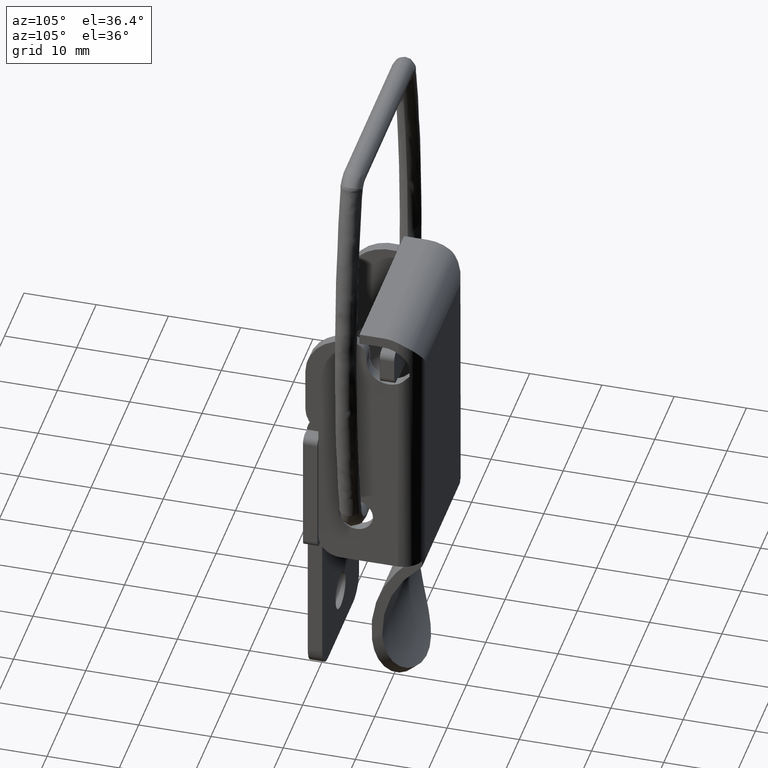
[diagram: clean part render]
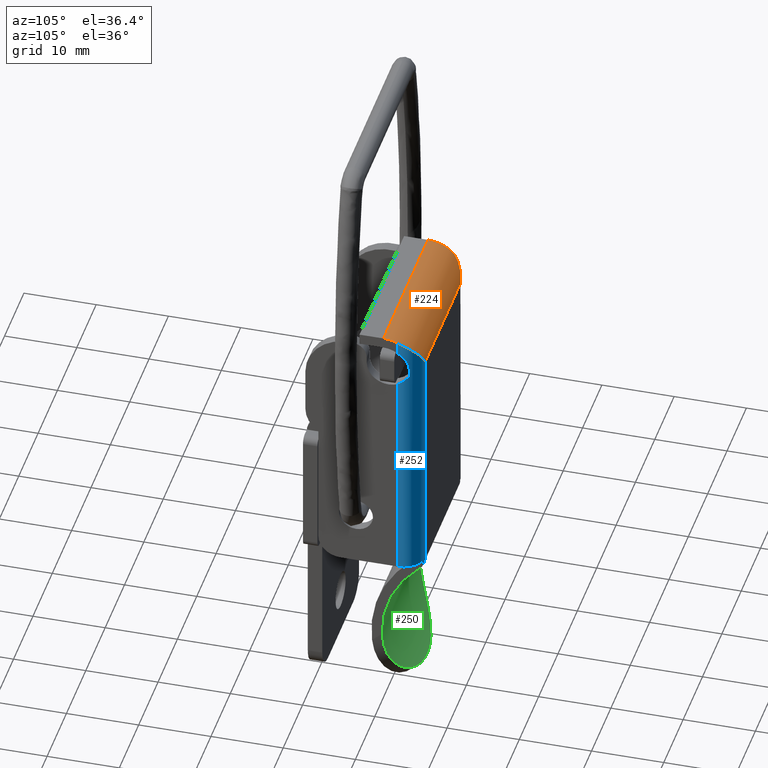
[diagram: same view with three faces highlighted in distinct colors, each labeled with its STEP entity id]
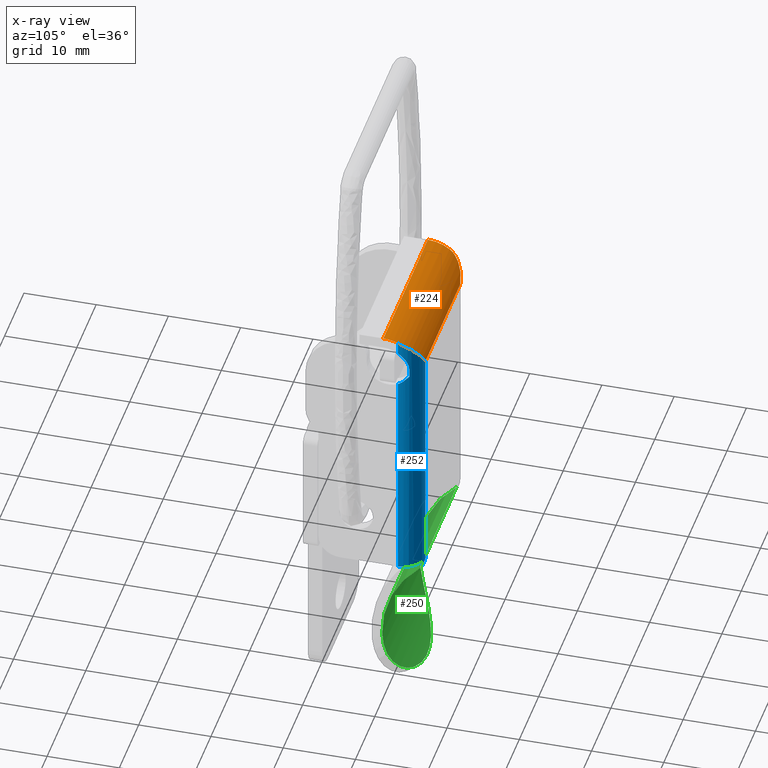
[diagram: x-ray of the same camera — body ghosted, the three highlighted faces saturated]
A machine part, auxiliary view with three faces highlighted in distinct colors.
The next image is the same camera in x-ray (body ghosted, the three faces saturated) — at least one of them is partly hidden behind the body in this view.
Their STEP definitions:

[orange] entity #224 — the highlighted cylindrical surface (partial cylindrical patch) has radius 5 mm, axis along (-1, 0, 0).
#224=ADVANCED_FACE('',(#1026),#1025,.T.);
#1025=CYLINDRICAL_SURFACE('',#2123,5.00000000000E+00);
#1026=FACE_OUTER_BOUND('',#2124,.T.);
#2120=CARTESIAN_POINT('',(3.79999999996E+00,1.00000000000E+03,2.50000000000E+01));
#2121=DIRECTION('',(-0.00000000000E+00,1.00000000000E+00,0.00000000000E+00));
#2122=DIRECTION('',(-0.00000000000E+00,-0.00000000000E+00,1.00000000000E+00));
#2123=AXIS2_PLACEMENT_3D('',#2120,#2121,#2122);
#2124=EDGE_LOOP('',(#2743,#2744,#2745,#2746,#2747,#2748));
#2743=ORIENTED_EDGE('',*,*,#3198,.F.);
#2744=ORIENTED_EDGE('',*,*,#3199,.T.);
#2745=ORIENTED_EDGE('',*,*,#3200,.F.);
#2746=ORIENTED_EDGE('',*,*,#3201,.T.);
#2747=ORIENTED_EDGE('',*,*,#3202,.F.);
#2748=ORIENTED_EDGE('',*,*,#3203,.T.);
#3198=EDGE_CURVE('',#4635,#4636,#4637,.T.);
#3199=EDGE_CURVE('',#4635,#4643,#4644,.T.);
#3200=EDGE_CURVE('',#4650,#4643,#4651,.T.);
#3201=EDGE_CURVE('',#4650,#4657,#4658,.T.);
#3202=EDGE_CURVE('',#4664,#4657,#4665,.T.);
#3203=EDGE_CURVE('',#4664,#4636,#4671,.T.);
#4635=VERTEX_POINT('',#6369);
#4636=VERTEX_POINT('',#6370);
#4637=LINE('',#6371,#6372);
#4643=VERTEX_POINT('',#6374);
#4644=(BOUNDED_CURVE() B_SPLINE_CURVE(3,(#6375,#6376,#6377,#6378,#6379,#6380,#6381,#6382,#6383,#6384,#6385,#6386,#6387,#6388),.UNSPECIFIED.,.F.,.F.) B_SPLINE_CURVE_WITH_KNOTS((4,2,2,2,2,2,4),(-5.10609110807E-03,-4.46782971956E-03,-3.82956833105E-03,-2.55304555403E-03,-1.27652277702E-03,-6.38261388509E-04,-3.87895961445E-18),.UNSPECIFIED.) CURVE() GEOMETRIC_REPRESENTATION_ITEM() RATIONAL_B_SPLINE_CURVE((1.00000000000E+00,1.00000000000E+00,1.00000000000E+00,1.00000000000E+00,1.00000000000E+00,1.00000000000E+00,1.00000000000E+00,1.00000000000E+00,1.00000000000E+00,1.00000000000E+00,1.00000000000E+00,1.00000000000E+00,1.00000000000E+00,1.00000000000E+00)) REPRESENTATION_ITEM('') );
#4650=VERTEX_POINT('',#6389);
#4651=CIRCLE('',#6393,5.00000000000E+00);
#4657=VERTEX_POINT('',#6394);
#4658=LINE('',#6395,#6396);
#4664=VERTEX_POINT('',#6398);
#4665=CIRCLE('',#6402,5.00000000000E+00);
#4671=(BOUNDED_CURVE() B_SPLINE_CURVE(3,(#6403,#6404,#6405,#6406,#6407,#6408,#6409,#6410,#6411,#6412,#6413,#6414,#6415,#6416,#6417,#6418,#6419,#6420),.UNSPECIFIED.,.F.,.F.) B_SPLINE_CURVE_WITH_KNOTS((4,2,2,2,2,2,2,2,4),(8.73965404867E-19,8.27608451889E-04,1.65521690378E-03,2.48282535567E-03,3.31043380756E-03,4.13804225944E-03,4.96565071133E-03,5.79325916322E-03,6.62086761511E-03),.UNSPECIFIED.) CURVE() GEOMETRIC_REPRESENTATION_ITEM() RATIONAL_B_SPLINE_CURVE((1.00000000000E+00,1.00000000000E+00,1.00000000000E+00,1.00000000000E+00,1.00000000000E+00,1.00000000000E+00,1.00000000000E+00,1.00000000000E+00,1.00000000000E+00,1.00000000000E+00,1.00000000000E+00,1.00000000000E+00,1.00000000000E+00,1.00000000000E+00,1.00000000000E+00,1.00000000000E+00,1.00000000000E+00,1.00000000000E+00)) REPRESENTATION_ITEM('') );
#6369=CARTESIAN_POINT('',(8.79999999996E+00,2.10000000000E+01,2.50000000000E+01));
#6370=CARTESIAN_POINT('',(8.79999999996E+00,3.00000000000E+00,2.50000000000E+01));
#6371=CARTESIAN_POINT('',(8.79999999996E+00,2.10000000000E+01,2.50000000000E+01));
#6372=VECTOR('',#6373,1.80000000000E+01);
#6373=DIRECTION('',(0.00000000000E+00,-1.00000000000E+00,0.00000000000E+00));
#6374=CARTESIAN_POINT('',(6.79999999996E+00,2.30000000000E+01,2.90000000000E+01));
#6375=CARTESIAN_POINT('',(8.79999999996E+00,2.10000000000E+01,2.50000000000E+01));
#6376=CARTESIAN_POINT('',(8.79999999996E+00,2.11137216587E+01,2.51798099228E+01));
#6377=CARTESIAN_POINT('',(8.79019437343E+00,2.12287932559E+01,2.53617507074E+01));
#6378=CARTESIAN_POINT('',(8.75086293260E+00,2.14553611931E+01,2.57223985614E+01));
#6379=CARTESIAN_POINT('',(8.72149250933E+00,2.15668273533E+01,2.59010431486E+01));
#6380=CARTESIAN_POINT('',(8.60401677715E+00,2.18939968208E+01,2.64329312285E+01));
#6381=CARTESIAN_POINT('',(8.48728109628E+00,2.21029011218E+01,2.67820808311E+01));
#6382=CARTESIAN_POINT('',(8.16152467226E+00,2.24864585259E+01,2.74745744477E+01));
#6383=CARTESIAN_POINT('',(7.95664909630E+00,2.26563089004E+01,2.78085078319E+01));
#6384=CARTESIAN_POINT('',(7.57520030550E+00,2.28491521199E+01,2.82846955173E+01));
#6385=CARTESIAN_POINT('',(7.43432565013E+00,2.29030631948E+01,2.84402948107E+01));
#6386=CARTESIAN_POINT('',(7.13357851545E+00,2.29780657036E+01,2.87324530267E+01));
#6387=CARTESIAN_POINT('',(6.97276085975E+00,2.30000000000E+01,2.88704293552E+01));
#6388=CARTESIAN_POINT('',(6.79999999996E+00,2.30000000000E+01,2.90000000000E+01));
#6389=CARTESIAN_POINT('',(3.79999999997E+00,2.30000000000E+01,3.00000000000E+01));
#6390=CARTESIAN_POINT('',(3.79999999997E+00,2.30000000000E+01,2.50000000000E+01));
#6391=DIRECTION('',(0.00000000000E+00,1.00000000000E+00,0.00000000000E+00));
#6392=DIRECTION('',(-0.00000000000E+00,0.00000000000E+00,-1.00000000000E+00));
#6393=AXIS2_PLACEMENT_3D('',#6390,#6391,#6392);
#6394=CARTESIAN_POINT('',(3.79999999996E+00,0.00000000000E+00,3.00000000000E+01));
#6395=CARTESIAN_POINT('',(3.79999999996E+00,2.30000000000E+01,3.00000000000E+01));
#6396=VECTOR('',#6397,2.30000000000E+01);
#6397=DIRECTION('',(0.00000000000E+00,-1.00000000000E+00,0.00000000000E+00));
#6398=CARTESIAN_POINT('',(5.79999999996E+00,0.00000000000E+00,2.95825756950E+01));
#6399=CARTESIAN_POINT('',(3.79999999996E+00,0.00000000000E+00,2.50000000000E+01));
#6400=DIRECTION('',(0.00000000000E+00,-1.00000000000E+00,0.00000000000E+00));
#6401=DIRECTION('',(-0.00000000000E+00,-0.00000000000E+00,-1.00000000000E+00));
#6402=AXIS2_PLACEMENT_3D('',#6399,#6400,#6401);
#6403=CARTESIAN_POINT('',(5.79999999996E+00,0.00000000000E+00,2.95825756950E+01));
#6404=CARTESIAN_POINT('',(6.05718857864E+00,7.62329652529E-18,2.94703293969E+01));
#6405=CARTESIAN_POINT('',(6.29820351339E+00,3.24128797601E-02,2.93396264037E+01));
#6406=CARTESIAN_POINT('',(6.75241932306E+00,1.45586314147E-01,2.90443291481E+01));
#6407=CARTESIAN_POINT('',(6.96570670742E+00,2.27417809673E-01,2.88787939058E+01));
#6408=CARTESIAN_POINT('',(7.34860562711E+00,4.21646893560E-01,2.85318747465E+01));
#6409=CARTESIAN_POINT('',(7.52132732589E+00,5.34771172345E-01,2.83486209243E+01));
#6410=CARTESIAN_POINT('',(7.83451394229E+00,7.86163069655E-01,2.79638212515E+01));
#6411=CARTESIAN_POINT('',(7.97271747779E+00,9.22920475005E-01,2.77647318871E+01));
#6412=CARTESIAN_POINT('',(8.21381250263E+00,1.20877980315E+00,2.73608415340E+01));
#6413=CARTESIAN_POINT('',(8.31754820946E+00,1.35866316537E+00,2.71549226472E+01));
#6414=CARTESIAN_POINT('',(8.49484431005E+00,1.66964300420E+00,2.67350418855E+01));
#6415=CARTESIAN_POINT('',(8.56860106504E+00,1.83163079409E+00,2.65199504032E+01));
#6416=CARTESIAN_POINT('',(8.68505253228E+00,2.15933934036E+00,2.60890670789E+01));
#6417=CARTESIAN_POINT('',(8.72810269693E+00,2.32536607109E+00,2.58728450315E+01));
#6418=CARTESIAN_POINT('',(8.78558258476E+00,2.66056963695E+00,2.54382019296E+01));
#6419=CARTESIAN_POINT('',(8.79999999996E+00,2.83106511017E+00,2.52180940959E+01));
#6420=CARTESIAN_POINT('',(8.79999999996E+00,3.00000000000E+00,2.50000000000E+01));

[blue] entity #252 — the highlighted cylindrical surface (edge-blend (fillet) strip) has radius 3 mm, axis along (0, 0, 1).
#252=ADVANCED_FACE('',(#1310),#1309,.T.);
#1309=CYLINDRICAL_SURFACE('',#2267,3.00000000000E+00);
#1310=FACE_OUTER_BOUND('',#2268,.T.);
#2264=CARTESIAN_POINT('',(5.79999999996E+00,3.00000000000E+00,2.50000000000E+01));
#2265=DIRECTION('',(-0.00000000000E+00,-0.00000000000E+00,1.00000000000E+00));
#2266=DIRECTION('',(1.00000000000E+00,-0.00000000000E+00,-0.00000000000E+00));
#2267=AXIS2_PLACEMENT_3D('',#2264,#2265,#2266);
#2268=EDGE_LOOP('',(#2915,#2916,#2917,#2918,#2919,#2920,#2921,#2922,#2923,#2924,#2925));
#2915=ORIENTED_EDGE('',*,*,#3213,.F.);
#2916=ORIENTED_EDGE('',*,*,#3251,.F.);
#2917=ORIENTED_EDGE('',*,*,#3311,.F.);
#2918=ORIENTED_EDGE('',*,*,#3273,.F.);
#2919=ORIENTED_EDGE('',*,*,#3208,.F.);
#2920=ORIENTED_EDGE('',*,*,#3206,.F.);
#2921=ORIENTED_EDGE('',*,*,#3203,.F.);
#2922=ORIENTED_EDGE('',*,*,#3231,.F.);
#2923=ORIENTED_EDGE('',*,*,#3223,.F.);
#2924=ORIENTED_EDGE('',*,*,#3312,.F.);
#2925=ORIENTED_EDGE('',*,*,#3217,.F.);
#3203=EDGE_CURVE('',#4664,#4636,#4671,.T.);
#3206=EDGE_CURVE('',#4636,#4691,#4692,.T.);
#3208=EDGE_CURVE('',#4691,#4704,#4705,.T.);
#3213=EDGE_CURVE('',#4732,#4739,#4740,.T.);
#3217=EDGE_CURVE('',#4739,#4766,#4767,.T.);
#3223=EDGE_CURVE('',#4801,#4808,#4809,.T.);
#3231=EDGE_CURVE('',#4808,#4664,#4861,.T.);
#3251=EDGE_CURVE('',#4990,#4732,#4998,.T.);
#3273=EDGE_CURVE('',#4704,#5147,#5148,.T.);
#3311=EDGE_CURVE('',#5147,#4990,#5399,.T.);
#3312=EDGE_CURVE('',#4766,#4801,#5405,.T.);
#4636=VERTEX_POINT('',#6370);
#4664=VERTEX_POINT('',#6398);
#4671=(BOUNDED_CURVE() B_SPLINE_CURVE(3,(#6403,#6404,#6405,#6406,#6407,#6408,#6409,#6410,#6411,#6412,#6413,#6414,#6415,#6416,#6417,#6418,#6419,#6420),.UNSPECIFIED.,.F.,.F.) B_SPLINE_CURVE_WITH_KNOTS((4,2,2,2,2,2,2,2,4),(8.73965404867E-19,8.27608451889E-04,1.65521690378E-03,2.48282535567E-03,3.31043380756E-03,4.13804225944E-03,4.96565071133E-03,5.79325916322E-03,6.62086761511E-03),.UNSPECIFIED.) CURVE() GEOMETRIC_REPRESENTATION_ITEM() RATIONAL_B_SPLINE_CURVE((1.00000000000E+00,1.00000000000E+00,1.00000000000E+00,1.00000000000E+00,1.00000000000E+00,1.00000000000E+00,1.00000000000E+00,1.00000000000E+00,1.00000000000E+00,1.00000000000E+00,1.00000000000E+00,1.00000000000E+00,1.00000000000E+00,1.00000000000E+00,1.00000000000E+00,1.00000000000E+00,1.00000000000E+00,1.00000000000E+00)) REPRESENTATION_ITEM('') );
#4691=VERTEX_POINT('',#6429);
#4692=LINE('',#6430,#6431);
#4704=VERTEX_POINT('',#6436);
#4705=(BOUNDED_CURVE() B_SPLINE_CURVE(3,(#6437,#6438,#6439,#6440,#6441,#6442),.UNSPECIFIED.,.F.,.F.) B_SPLINE_CURVE_WITH_KNOTS((4,2,4),(-1.23084538289E-03,-6.15422691446E-04,-0.00000000000E+00),.UNSPECIFIED.) CURVE() GEOMETRIC_REPRESENTATION_ITEM() RATIONAL_B_SPLINE_CURVE((1.00000000000E+00,1.00000000000E+00,1.00000000000E+00,1.00000000000E+00,1.00000000000E+00,1.00000000000E+00)) REPRESENTATION_ITEM('') );
#4732=VERTEX_POINT('',#6457);
#4739=VERTEX_POINT('',#6462);
#4740=(BOUNDED_CURVE() B_SPLINE_CURVE(3,(#6463,#6464,#6465,#6466,#6467,#6468),.UNSPECIFIED.,.F.,.F.) B_SPLINE_CURVE_WITH_KNOTS((4,2,4),(8.70465573132E-19,6.15724168453E-04,1.23144833691E-03),.UNSPECIFIED.) CURVE() GEOMETRIC_REPRESENTATION_ITEM() RATIONAL_B_SPLINE_CURVE((1.00000000000E+00,1.00000000000E+00,1.00000000000E+00,1.00000000000E+00,1.00000000000E+00,1.00000000000E+00)) REPRESENTATION_ITEM('') );
#4766=VERTEX_POINT('',#6481);
#4767=(BOUNDED_CURVE() B_SPLINE_CURVE(2,(#6482,#6483,#6484),.UNSPECIFIED.,.F.,.F.) B_SPLINE_CURVE_WITH_KNOTS((3,3),(-4.38372461412E+00,-4.18879020479E+00),.UNSPECIFIED.) CURVE() GEOMETRIC_REPRESENTATION_ITEM() RATIONAL_B_SPLINE_CURVE((1.00000000000E+00,9.95253831119E-01,1.00000000000E+00)) REPRESENTATION_ITEM('') );
#4801=VERTEX_POINT('',#6505);
#4808=VERTEX_POINT('',#6509);
#4809=(BOUNDED_CURVE() B_SPLINE_CURVE(3,(#6510,#6511,#6512,#6513,#6514,#6515,#6516,#6517,#6518,#6519,#6520,#6521),.UNSPECIFIED.,.F.,.F.) B_SPLINE_CURVE_WITH_KNOTS((4,2,2,2,2,4),(0.00000000000E+00,8.45146609441E-04,1.26771991416E-03,1.69029321888E-03,2.53543982832E-03,3.38058643776E-03),.UNSPECIFIED.) CURVE() GEOMETRIC_REPRESENTATION_ITEM() RATIONAL_B_SPLINE_CURVE((1.00000000000E+00,1.00000000000E+00,1.00000000000E+00,1.00000000000E+00,1.00000000000E+00,1.00000000000E+00,1.00000000000E+00,1.00000000000E+00,1.00000000000E+00,1.00000000000E+00,1.00000000000E+00,1.00000000000E+00)) REPRESENTATION_ITEM('') );
#4861=LINE('',#6549,#6550);
#4990=VERTEX_POINT('',#6627);
#4998=LINE('',#6632,#6633);
#5147=VERTEX_POINT('',#6818);
#5148=LINE('',#6819,#6820);
#5399=CIRCLE('',#6975,3.00000000000E+00);
#5405=LINE('',#6976,#6977);
#6370=CARTESIAN_POINT('',(8.79999999996E+00,3.00000000000E+00,2.50000000000E+01));
#6398=CARTESIAN_POINT('',(5.79999999996E+00,0.00000000000E+00,2.95825756950E+01));
#6403=CARTESIAN_POINT('',(5.79999999996E+00,0.00000000000E+00,2.95825756950E+01));
#6404=CARTESIAN_POINT('',(6.05718857864E+00,7.62329652529E-18,2.94703293969E+01));
#6405=CARTESIAN_POINT('',(6.29820351339E+00,3.24128797601E-02,2.93396264037E+01));
#6406=CARTESIAN_POINT('',(6.75241932306E+00,1.45586314147E-01,2.90443291481E+01));
#6407=CARTESIAN_POINT('',(6.96570670742E+00,2.27417809673E-01,2.88787939058E+01));
#6408=CARTESIAN_POINT('',(7.34860562711E+00,4.21646893560E-01,2.85318747465E+01));
#6409=CARTESIAN_POINT('',(7.52132732589E+00,5.34771172345E-01,2.83486209243E+01));
#6410=CARTESIAN_POINT('',(7.83451394229E+00,7.86163069655E-01,2.79638212515E+01));
#6411=CARTESIAN_POINT('',(7.97271747779E+00,9.22920475005E-01,2.77647318871E+01));
#6412=CARTESIAN_POINT('',(8.21381250263E+00,1.20877980315E+00,2.73608415340E+01));
#6413=CARTESIAN_POINT('',(8.31754820946E+00,1.35866316537E+00,2.71549226472E+01));
#6414=CARTESIAN_POINT('',(8.49484431005E+00,1.66964300420E+00,2.67350418855E+01));
#6415=CARTESIAN_POINT('',(8.56860106504E+00,1.83163079409E+00,2.65199504032E+01));
#6416=CARTESIAN_POINT('',(8.68505253228E+00,2.15933934036E+00,2.60890670789E+01));
#6417=CARTESIAN_POINT('',(8.72810269693E+00,2.32536607109E+00,2.58728450315E+01));
#6418=CARTESIAN_POINT('',(8.78558258476E+00,2.66056963695E+00,2.54382019296E+01));
#6419=CARTESIAN_POINT('',(8.79999999996E+00,2.83106511017E+00,2.52180940959E+01));
#6420=CARTESIAN_POINT('',(8.79999999996E+00,3.00000000000E+00,2.50000000000E+01));
#6429=CARTESIAN_POINT('',(8.79999999996E+00,3.00000000000E+00,-7.67458484350E+00));
#6430=CARTESIAN_POINT('',(8.79999999996E+00,3.00000000000E+00,2.50000000000E+01));
#6431=VECTOR('',#6432,3.26745848435E+01);
#6432=DIRECTION('',(0.00000000000E+00,0.00000000000E+00,-1.00000000000E+00));
#6436=CARTESIAN_POINT('',(8.62842712471E+00,2.00000000001E+00,-8.37120624299E+00));
#6437=CARTESIAN_POINT('',(8.79999999996E+00,3.00000000000E+00,-7.67458484350E+00));
#6438=CARTESIAN_POINT('',(8.79999999996E+00,2.83250297306E+00,-7.79302299611E+00));
#6439=CARTESIAN_POINT('',(8.78583344287E+00,2.66336867522E+00,-7.91262353979E+00));
#6440=CARTESIAN_POINT('',(8.72918686377E+00,2.33038345712E+00,-8.14552894773E+00));
#6441=CARTESIAN_POINT('',(8.68674600515E+00,2.16495070334E+00,-8.25999463978E+00));
#6442=CARTESIAN_POINT('',(8.62842712471E+00,2.00000000001E+00,-8.37120624299E+00));
#6457=CARTESIAN_POINT('',(5.79999999996E+00,0.00000000000E+00,2.27962988331E+01));
#6462=CARTESIAN_POINT('',(6.76833752096E+00,1.60577092890E-01,2.35366750419E+01));
#6463=CARTESIAN_POINT('',(5.79999999996E+00,0.00000000000E+00,2.27962988331E+01));
#6464=CARTESIAN_POINT('',(5.98806646659E+00,1.90582413132E-18,2.28867253971E+01));
#6465=CARTESIAN_POINT('',(6.16225092643E+00,1.74259288196E-02,2.29943247818E+01));
#6466=CARTESIAN_POINT('',(6.48567639566E+00,7.47954423345E-02,2.32419974108E+01));
#6467=CARTESIAN_POINT('',(6.63535685027E+00,1.15226267313E-01,2.33830351446E+01));
#6468=CARTESIAN_POINT('',(6.76833752096E+00,1.60577092890E-01,2.35366750419E+01));
#6481=CARTESIAN_POINT('',(7.29999999996E+00,4.01923788647E-01,2.40044098469E+01));
#6482=CARTESIAN_POINT('',(6.76833752096E+00,1.60577092890E-01,2.35366750419E+01));
#6483=CARTESIAN_POINT('',(7.04596784123E+00,2.55258253421E-01,2.37809227909E+01));
#6484=CARTESIAN_POINT('',(7.29999999996E+00,4.01923788647E-01,2.40044098469E+01));
#6505=CARTESIAN_POINT('',(7.29999999996E+00,4.01923788647E-01,2.50000000000E+01));
#6509=CARTESIAN_POINT('',(5.79999999996E+00,0.00000000000E+00,2.78722813233E+01));
#6510=CARTESIAN_POINT('',(7.29999999996E+00,4.01923788647E-01,2.50000000000E+01));
#6511=CARTESIAN_POINT('',(7.29999999996E+00,4.01923788647E-01,2.52862378244E+01));
#6512=CARTESIAN_POINT('',(7.26544699217E+00,3.81176922813E-01,2.55652341488E+01));
#6513=CARTESIAN_POINT('',(7.16464588129E+00,3.28074866745E-01,2.59740950765E+01));
#6514=CARTESIAN_POINT('',(7.12241016403E+00,3.06630553311E-01,2.61096035874E+01));
#6515=CARTESIAN_POINT('',(7.02308676714E+00,2.60097377945E-01,2.63716198857E+01));
#6516=CARTESIAN_POINT('',(6.96603043517E+00,2.35011286977E-01,2.64985172127E+01));
#6517=CARTESIAN_POINT('',(6.77291603753E+00,1.58769171693E-01,2.68678812721E+01));
#6518=CARTESIAN_POINT('',(6.61252871314E+00,1.05975259156E-01,2.71018285366E+01));
#6519=CARTESIAN_POINT('',(6.24362490439E+00,2.69915818272E-02,2.75212493503E+01));
#6520=CARTESIAN_POINT('',(6.03525687550E+00,-2.64104872954E-15,2.77084694615E+01));
#6521=CARTESIAN_POINT('',(5.79999999996E+00,-2.75909277962E-15,2.78722813233E+01));
#6549=CARTESIAN_POINT('',(5.79999999996E+00,0.00000000000E+00,2.78722813233E+01));
#6550=VECTOR('',#6551,1.71029437169E+00);
#6551=DIRECTION('',(0.00000000000E+00,0.00000000000E+00,1.00000000000E+00));
#6627=CARTESIAN_POINT('',(5.79999999996E+00,0.00000000000E+00,-7.50000000000E+00));
#6632=CARTESIAN_POINT('',(5.79999999996E+00,0.00000000000E+00,-7.50000000000E+00));
#6633=VECTOR('',#6634,3.02962988331E+01);
#6634=DIRECTION('',(0.00000000000E+00,0.00000000000E+00,1.00000000000E+00));
#6818=CARTESIAN_POINT('',(8.62842712471E+00,2.00000000001E+00,-7.50000000000E+00));
#6819=CARTESIAN_POINT('',(8.62842712471E+00,2.00000000001E+00,-8.37120624299E+00));
#6820=VECTOR('',#6821,8.71206242988E-01);
#6821=DIRECTION('',(0.00000000000E+00,0.00000000000E+00,1.00000000000E+00));
#6972=CARTESIAN_POINT('',(5.79999999996E+00,3.00000000000E+00,-7.50000000000E+00));
#6973=DIRECTION('',(-0.00000000000E+00,0.00000000000E+00,-1.00000000000E+00));
#6974=DIRECTION('',(-1.00000000000E+00,-0.00000000000E+00,0.00000000000E+00));
#6975=AXIS2_PLACEMENT_3D('',#6972,#6973,#6974);
#6976=CARTESIAN_POINT('',(7.29999999996E+00,4.01923788647E-01,2.40044098469E+01));
#6977=VECTOR('',#6978,9.95590153160E-01);
#6978=DIRECTION('',(0.00000000000E+00,0.00000000000E+00,1.00000000000E+00));

[green] entity #250 — the highlighted cylindrical surface (partial cylindrical patch) has radius 15 mm, axis along (-1, 0, 0).
#250=ADVANCED_FACE('',(#1290),#1289,.F.);
#1289=CYLINDRICAL_SURFACE('',#2257,1.50000000000E+01);
#1290=FACE_OUTER_BOUND('',#2258,.T.);
#2254=CARTESIAN_POINT('',(1.81000000000E+01,1.00000000000E+03,-2.01489585753E+01));
#2255=DIRECTION('',(-0.00000000000E+00,1.00000000000E+00,0.00000000000E+00));
#2256=DIRECTION('',(-0.00000000000E+00,-0.00000000000E+00,1.00000000000E+00));
#2257=AXIS2_PLACEMENT_3D('',#2254,#2255,#2256);
#2258=EDGE_LOOP('',(#2907,#2908,#2909,#2910));
#2907=ORIENTED_EDGE('',*,*,#3267,.F.);
#2908=ORIENTED_EDGE('',*,*,#3272,.F.);
#2909=ORIENTED_EDGE('',*,*,#3210,.T.);
#2910=ORIENTED_EDGE('',*,*,#3277,.T.);
#3210=EDGE_CURVE('',#4718,#4711,#4719,.T.);
#3267=EDGE_CURVE('',#5101,#5108,#5109,.T.);
#3272=EDGE_CURVE('',#4718,#5101,#5141,.T.);
#3277=EDGE_CURVE('',#4711,#5108,#5174,.T.);
#4711=VERTEX_POINT('',#6443);
#4718=VERTEX_POINT('',#6448);
#4719=LINE('',#6449,#6450);
#5101=VERTEX_POINT('',#6742);
#5108=VERTEX_POINT('',#6746);
#5109=(BOUNDED_CURVE() B_SPLINE_CURVE(3,(#6747,#6748,#6749,#6750,#6751,#6752,#6753,#6754,#6755,#6756,#6757,#6758,#6759,#6760,#6761,#6762,#6763,#6764,#6765,#6766,#6767,#6768,#6769,#6770,#6771,#6772,#6773,#6774,#6775,#6776,#6777,#6778,#6779,#6780,#6781,#6782,#6783,#6784,#6785,#6786,#6787,#6788,#6789,#6790,#6791,#6792,#6793,#6794,#6795,#6796,#6797,#6798),.UNSPECIFIED.,.F.,.F.) B_SPLINE_CURVE_WITH_KNOTS((4,2,2,2,2,2,2,2,2,2,2,2,2,2,2,2,2,2,2,2,2,2,2,2,2,4),(-1.55921277857E-02,-1.36426121706E-02,-1.26678543631E-02,-1.16930965556E-02,-9.74358094052E-03,-8.76882313299E-03,-7.79406532545E-03,-6.81930751792E-03,-5.84454971039E-03,-3.89503409532E-03,-2.92027628779E-03,-1.94551848026E-03,-9.70760672722E-04,3.99713481072E-06,1.95351274988E-03,2.92827055741E-03,3.90302836494E-03,5.85254398001E-03,6.82730178754E-03,7.80205959507E-03,8.77681740261E-03,9.75157521014E-03,1.17010908252E-02,1.26758486327E-02,1.36506064403E-02,1.56001220553E-02),.UNSPECIFIED.) CURVE() GEOMETRIC_REPRESENTATION_ITEM() RATIONAL_B_SPLINE_CURVE((1.00000000000E+00,1.00000000000E+00,1.00000000000E+00,1.00000000000E+00,1.00000000000E+00,1.00000000000E+00,1.00000000000E+00,1.00000000000E+00,1.00000000000E+00,1.00000000000E+00,1.00000000000E+00,1.00000000000E+00,1.00000000000E+00,1.00000000000E+00,1.00000000000E+00,1.00000000000E+00,1.00000000000E+00,1.00000000000E+00,1.00000000000E+00,1.00000000000E+00,1.00000000000E+00,1.00000000000E+00,1.00000000000E+00,1.00000000000E+00,1.00000000000E+00,1.00000000000E+00,1.00000000000E+00,1.00000000000E+00,1.00000000000E+00,1.00000000000E+00,1.00000000000E+00,1.00000000000E+00,1.00000000000E+00,1.00000000000E+00,1.00000000000E+00,1.00000000000E+00,1.00000000000E+00,1.00000000000E+00,1.00000000000E+00,1.00000000000E+00,1.00000000000E+00,1.00000000000E+00,1.00000000000E+00,1.00000000000E+00,1.00000000000E+00,1.00000000000E+00,1.00000000000E+00,1.00000000000E+00,1.00000000000E+00,1.00000000000E+00,1.00000000000E+00,1.00000000000E+00)) REPRESENTATION_ITEM('') );
#5141=CIRCLE('',#6817,1.50000000000E+01);
#5174=CIRCLE('',#6837,1.50000000000E+01);
#6443=CARTESIAN_POINT('',(8.28181818178E+00,2.00000000001E+00,-8.80861881911E+00));
#6448=CARTESIAN_POINT('',(8.28181818178E+00,2.10000000000E+01,-8.80861881911E+00));
#6449=CARTESIAN_POINT('',(8.28181818178E+00,2.10000000000E+01,-8.80861881911E+00));
#6450=VECTOR('',#6451,1.90000000000E+01);
#6451=DIRECTION('',(0.00000000000E+00,-1.00000000000E+00,0.00000000000E+00));
#6742=CARTESIAN_POINT('',(3.10759666425E+00,2.10000000000E+01,-2.06262867855E+01));
#6746=CARTESIAN_POINT('',(3.10759666428E+00,2.00000000001E+00,-2.06262867855E+01));
#6747=CARTESIAN_POINT('',(3.10759666427E+00,2.10000000000E+01,-2.06262867855E+01));
#6748=CARTESIAN_POINT('',(3.12854353023E+00,2.10000000000E+01,-2.12842069675E+01));
#6749=CARTESIAN_POINT('',(3.19236656743E+00,2.09593055847E+01,-2.19314446915E+01));
#6750=CARTESIAN_POINT('',(3.34810293769E+00,2.08203399248E+01,-2.28848735762E+01));
#6751=CARTESIAN_POINT('',(3.41004046075E+00,2.07609817851E+01,-2.31997693696E+01));
#6752=CARTESIAN_POINT('',(3.55348190041E+00,2.06124066689E+01,-2.38233522594E+01));
#6753=CARTESIAN_POINT('',(3.63475704068E+00,2.05233330027E+01,-2.41304448822E+01));
#6754=CARTESIAN_POINT('',(3.89912512308E+00,2.02144591042E+01,-2.50189792184E+01));
#6755=CARTESIAN_POINT('',(4.10438025098E+00,1.99517061624E+01,-2.55751455502E+01));
#6756=CARTESIAN_POINT('',(4.44121099952E+00,1.94614027421E+01,-2.63552217305E+01));
#6757=CARTESIAN_POINT('',(4.55889423394E+00,1.92807942798E+01,-2.66071583680E+01));
#6758=CARTESIAN_POINT('',(4.79487794555E+00,1.88954005590E+01,-2.70803088800E+01));
#6759=CARTESIAN_POINT('',(4.91380065573E+00,1.86898085142E+01,-2.73031341549E+01));
#6760=CARTESIAN_POINT('',(5.15043556898E+00,1.82528963121E+01,-2.77230500996E+01));
#6761=CARTESIAN_POINT('',(5.26815481447E+00,1.80215784311E+01,-2.79201392050E+01));
#6762=CARTESIAN_POINT('',(5.49934729108E+00,1.75326279437E+01,-2.82896618959E+01));
#6763=CARTESIAN_POINT('',(5.61309040809E+00,1.72740892369E+01,-2.84624046827E+01));
#6764=CARTESIAN_POINT('',(5.93585477886E+00,1.64764893261E+01,-2.89341028760E+01));
#6765=CARTESIAN_POINT('',(6.12914395932E+00,1.59105504808E+01,-2.91915157264E+01));
#6766=CARTESIAN_POINT('',(6.37252562535E+00,1.50104498089E+01,-2.95022282355E+01));
#6767=CARTESIAN_POINT('',(6.44594534544E+00,1.47009265104E+01,-2.95931581199E+01));
#6768=CARTESIAN_POINT('',(6.57222419573E+00,1.40781117367E+01,-2.97468895990E+01));
#6769=CARTESIAN_POINT('',(6.62556850053E+00,1.37632603152E+01,-2.98103173587E+01));
#6770=CARTESIAN_POINT('',(6.71177509205E+00,1.31267876011E+01,-2.99117842535E+01));
#6771=CARTESIAN_POINT('',(6.74463923348E+00,1.28051662918E+01,-2.99498217328E+01));
#6772=CARTESIAN_POINT('',(6.78881323708E+00,1.21550528237E+01,-3.00007701237E+01));
#6773=CARTESIAN_POINT('',(6.80009191615E+00,1.18254867106E+01,-3.00136469797E+01));
#6774=CARTESIAN_POINT('',(6.79981446106E+00,1.08368641712E+01,-3.00133291515E+01));
#6775=CARTESIAN_POINT('',(6.75468445072E+00,1.01892924912E+01,-2.99622957161E+01));
#6776=CARTESIAN_POINT('',(6.62522014090E+00,9.23453178363E+00,-2.98099041746E+01));
#6777=CARTESIAN_POINT('',(6.57174206886E+00,8.91906702144E+00,-2.97463160332E+01));
#6778=CARTESIAN_POINT('',(6.44480074028E+00,8.29387731505E+00,-2.95917511346E+01));
#6779=CARTESIAN_POINT('',(6.37140959641E+00,7.98517185687E+00,-2.95008223164E+01));
#6780=CARTESIAN_POINT('',(6.12890249589E+00,7.08906220106E+00,-2.91911694607E+01));
#6781=CARTESIAN_POINT('',(5.93613185266E+00,6.52428714008E+00,-2.89344812289E+01));
#6782=CARTESIAN_POINT('',(5.61345202186E+00,5.72675858520E+00,-2.84629464115E+01));
#6783=CARTESIAN_POINT('',(5.49964319823E+00,5.46804431224E+00,-2.82901113472E+01));
#6784=CARTESIAN_POINT('',(5.26876877815E+00,4.97967378739E+00,-2.79211439384E+01));
#6785=CARTESIAN_POINT('',(5.15126601745E+00,4.74872405469E+00,-2.77244502375E+01));
#6786=CARTESIAN_POINT('',(4.91517164161E+00,4.31263655773E+00,-2.73056398477E+01));
#6787=CARTESIAN_POINT('',(4.79657309002E+00,4.10750136042E+00,-2.70835243729E+01));
#6788=CARTESIAN_POINT('',(4.56132306508E+00,3.72304113758E+00,-2.66122083154E+01));
#6789=CARTESIAN_POINT('',(4.44391234216E+00,3.54265004991E+00,-2.63612107821E+01));
#6790=CARTESIAN_POINT('',(4.10556002347E+00,3.04977341050E+00,-2.55784042319E+01));
#6791=CARTESIAN_POINT('',(3.89966059133E+00,2.78618284287E+00,-2.50206850780E+01));
#6792=CARTESIAN_POINT('',(3.63476649929E+00,2.47666989409E+00,-2.41305235164E+01));
#6793=CARTESIAN_POINT('',(3.55337778594E+00,2.38748251056E+00,-2.38229278117E+01));
#6794=CARTESIAN_POINT('',(3.41001172102E+00,2.23899142924E+00,-2.31996162342E+01));
#6795=CARTESIAN_POINT('',(3.34809466059E+00,2.17965280761E+00,-2.28848210595E+01));
#6796=CARTESIAN_POINT('',(3.19238981876E+00,2.04071492648E+00,-2.19315907252E+01));
#6797=CARTESIAN_POINT('',(3.12854801633E+00,2.00000000001E+00,-2.12843478713E+01));
#6798=CARTESIAN_POINT('',(3.10759666428E+00,2.00000000001E+00,-2.06262867855E+01));
#6814=CARTESIAN_POINT('',(1.81000000000E+01,2.10000000000E+01,-2.01489585753E+01));
#6815=DIRECTION('',(0.00000000000E+00,-1.00000000000E+00,0.00000000000E+00));
#6816=DIRECTION('',(-0.00000000000E+00,-0.00000000000E+00,-1.00000000000E+00));
#6817=AXIS2_PLACEMENT_3D('',#6814,#6815,#6816);
#6834=CARTESIAN_POINT('',(1.81000000000E+01,2.00000000001E+00,-2.01489585753E+01));
#6835=DIRECTION('',(0.00000000000E+00,-1.00000000000E+00,0.00000000000E+00));
#6836=DIRECTION('',(-0.00000000000E+00,-0.00000000000E+00,-1.00000000000E+00));
#6837=AXIS2_PLACEMENT_3D('',#6834,#6835,#6836);